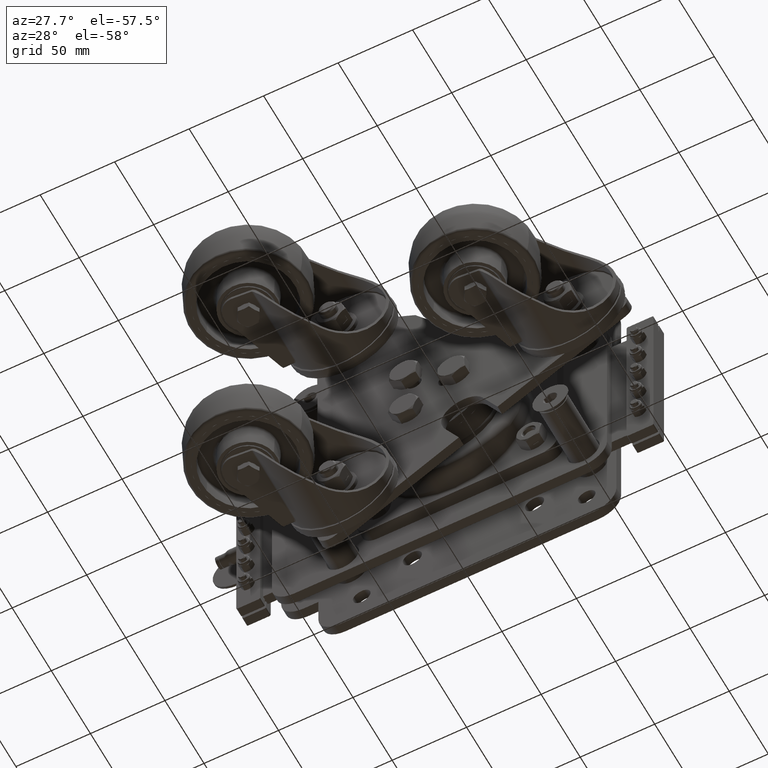
[diagram: clean part render]
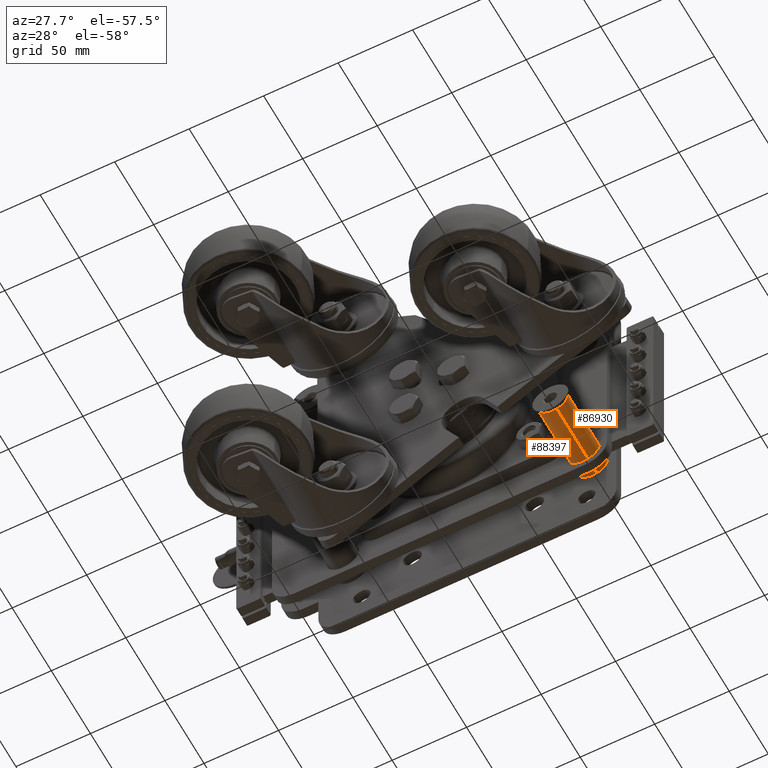
[diagram: same view with one multi-face feature highlighted, each face labeled with its STEP entity id]
A machine part, auxiliary view. The highlighted faces form ONE feature: a constant-radius fillet chain: 2 tangent blend faces with common blend radius 10 mm. The faces share edges in the B-rep.
Their STEP definitions:
[1] entity #86930 (Cylinder):
#1429 = DIRECTION ( 'NONE',  ( 0.0000000000000000000, -1.000000000000000000, 0.0000000000000000000 ) ) ;
#5336 = CARTESIAN_POINT ( 'NONE',  ( 77.89110428145059473, -38.99999999999999289, -49.41737430187008329 ) ) ;
#5554 = CARTESIAN_POINT ( 'NONE',  ( 80.74999999999997158, -38.99999999999999289, -59.00000000000000711 ) ) ;
#7248 = DIRECTION ( 'NONE',  ( 0.2858895718549387399, 0.0000000000000000000, -0.9582625698129921821 ) ) ;
#9030 = EDGE_CURVE ( 'NONE', #53094, #76576, #79877, .T. ) ;
#13613 = CARTESIAN_POINT ( 'NONE',  ( 83.60889571854936264, 12.00000000000000355, -68.58262569812991671 ) ) ;
#16368 = LINE ( 'NONE', #129026, #52244 ) ;
#18808 = CYLINDRICAL_SURFACE ( 'NONE', #73103, 9.999999999999996447 ) ;
#24683 = LINE ( 'NONE', #61466, #73086 ) ;
#37645 = ORIENTED_EDGE ( 'NONE', *, *, #9030, .T. ) ;
#38461 = CARTESIAN_POINT ( 'NONE',  ( 80.74999999999997158, -38.99999999999999289, -59.00000000000000711 ) ) ;
#39479 = ORIENTED_EDGE ( 'NONE', *, *, #58894, .F. ) ;
#45013 = EDGE_CURVE ( 'NONE', #77771, #53094, #16368, .T. ) ;
#45739 = DIRECTION ( 'NONE',  ( 0.0000000000000000000, 1.000000000000000000, 0.0000000000000000000 ) ) ;
#48458 = DIRECTION ( 'NONE',  ( -0.2858895718549387399, 0.0000000000000000000, 0.9582625698129921821 ) ) ;
#51217 = EDGE_LOOP ( 'NONE', ( #39479, #80608, #105840, #37645 ) ) ;
#52244 = VECTOR ( 'NONE', #70752, 1000.000000000000000 ) ;
#53094 = VERTEX_POINT ( 'NONE', #13613 ) ;
#58894 = EDGE_CURVE ( 'NONE', #80784, #76576, #24683, .T. ) ;
#61012 = CARTESIAN_POINT ( 'NONE',  ( 77.89110428145059473, 12.00000000000000355, -49.41737430187008329 ) ) ;
#61312 = DIRECTION ( 'NONE',  ( -0.2858895718549387399, 0.0000000000000000000, 0.9582625698129921821 ) ) ;
#61466 = CARTESIAN_POINT ( 'NONE',  ( 77.89110428145059473, -38.99999999999999289, -49.41737430187008329 ) ) ;
#70752 = DIRECTION ( 'NONE',  ( 0.0000000000000000000, 1.000000000000000000, 0.0000000000000000000 ) ) ;
#73086 = VECTOR ( 'NONE', #101734, 1000.000000000000000 ) ;
#73103 = AXIS2_PLACEMENT_3D ( 'NONE', #5554, #45739, #7248 ) ;
#76576 = VERTEX_POINT ( 'NONE', #61012 ) ;
#77771 = VERTEX_POINT ( 'NONE', #127773 ) ;
#79877 = CIRCLE ( 'NONE', #100388, 9.999999999999996447 ) ;
#80608 = ORIENTED_EDGE ( 'NONE', *, *, #118829, .F. ) ;
#80784 = VERTEX_POINT ( 'NONE', #5336 ) ;
#86930 = ADVANCED_FACE ( 'NONE', ( #123756 ), #18808, .T. ) ;
#97949 = CIRCLE ( 'NONE', #104237, 9.999999999999996447 ) ;
#100388 = AXIS2_PLACEMENT_3D ( 'NONE', #121303, #1429, #61312 ) ;
#101734 = DIRECTION ( 'NONE',  ( 0.0000000000000000000, 1.000000000000000000, 0.0000000000000000000 ) ) ;
#104237 = AXIS2_PLACEMENT_3D ( 'NONE', #38461, #108476, #48458 ) ;
#105840 = ORIENTED_EDGE ( 'NONE', *, *, #45013, .T. ) ;
#108476 = DIRECTION ( 'NONE',  ( 0.0000000000000000000, -1.000000000000000000, 0.0000000000000000000 ) ) ;
#118829 = EDGE_CURVE ( 'NONE', #77771, #80784, #97949, .T. ) ;
#121303 = CARTESIAN_POINT ( 'NONE',  ( 80.74999999999997158, 12.00000000000000355, -59.00000000000000711 ) ) ;
#123756 = FACE_OUTER_BOUND ( 'NONE', #51217, .T. ) ;
#127773 = CARTESIAN_POINT ( 'NONE',  ( 83.60889571854936264, -38.99999999999999289, -68.58262569812991671 ) ) ;
#129026 = CARTESIAN_POINT ( 'NONE',  ( 83.60889571854936264, -38.99999999999999289, -68.58262569812991671 ) ) ;
[2] entity #88397 (Cylinder):
#5336 = CARTESIAN_POINT ( 'NONE',  ( 77.89110428145059473, -38.99999999999999289, -49.41737430187008329 ) ) ;
#13613 = CARTESIAN_POINT ( 'NONE',  ( 83.60889571854936264, 12.00000000000000355, -68.58262569812991671 ) ) ;
#13903 = ORIENTED_EDGE ( 'NONE', *, *, #105943, .F. ) ;
#16368 = LINE ( 'NONE', #129026, #52244 ) ;
#24683 = LINE ( 'NONE', #61466, #73086 ) ;
#31452 = CARTESIAN_POINT ( 'NONE',  ( 80.74999999999997158, 12.00000000000000355, -59.00000000000000711 ) ) ;
#45013 = EDGE_CURVE ( 'NONE', #77771, #53094, #16368, .T. ) ;
#47545 = CYLINDRICAL_SURFACE ( 'NONE', #101842, 9.999999999999996447 ) ;
#51574 = CIRCLE ( 'NONE', #122830, 9.999999999999996447 ) ;
#52244 = VECTOR ( 'NONE', #70752, 1000.000000000000000 ) ;
#53094 = VERTEX_POINT ( 'NONE', #13613 ) ;
#54866 = DIRECTION ( 'NONE',  ( 0.2858895718549387399, 0.0000000000000000000, -0.9582625698129921821 ) ) ;
#58894 = EDGE_CURVE ( 'NONE', #80784, #76576, #24683, .T. ) ;
#61012 = CARTESIAN_POINT ( 'NONE',  ( 77.89110428145059473, 12.00000000000000355, -49.41737430187008329 ) ) ;
#61466 = CARTESIAN_POINT ( 'NONE',  ( 77.89110428145059473, -38.99999999999999289, -49.41737430187008329 ) ) ;
#65870 = DIRECTION ( 'NONE',  ( -0.2858895718549387399, 0.0000000000000000000, 0.9582625698129921821 ) ) ;
#69035 = CIRCLE ( 'NONE', #123467, 9.999999999999996447 ) ;
#69254 = ORIENTED_EDGE ( 'NONE', *, *, #80045, .T. ) ;
#70752 = DIRECTION ( 'NONE',  ( 0.0000000000000000000, 1.000000000000000000, 0.0000000000000000000 ) ) ;
#70914 = EDGE_LOOP ( 'NONE', ( #13903, #117015, #69254, #78079 ) ) ;
#72110 = DIRECTION ( 'NONE',  ( -0.2858895718549387399, 0.0000000000000000000, 0.9582625698129921821 ) ) ;
#73086 = VECTOR ( 'NONE', #101734, 1000.000000000000000 ) ;
#76576 = VERTEX_POINT ( 'NONE', #61012 ) ;
#77771 = VERTEX_POINT ( 'NONE', #127773 ) ;
#78079 = ORIENTED_EDGE ( 'NONE', *, *, #45013, .F. ) ;
#80045 = EDGE_CURVE ( 'NONE', #76576, #53094, #51574, .T. ) ;
#80784 = VERTEX_POINT ( 'NONE', #5336 ) ;
#88397 = ADVANCED_FACE ( 'NONE', ( #91407 ), #47545, .T. ) ;
#91407 = FACE_OUTER_BOUND ( 'NONE', #70914, .T. ) ;
#96131 = CARTESIAN_POINT ( 'NONE',  ( 80.74999999999997158, -38.99999999999999289, -59.00000000000000711 ) ) ;
#100590 = DIRECTION ( 'NONE',  ( 0.0000000000000000000, -1.000000000000000000, 0.0000000000000000000 ) ) ;
#101734 = DIRECTION ( 'NONE',  ( 0.0000000000000000000, 1.000000000000000000, 0.0000000000000000000 ) ) ;
#101842 = AXIS2_PLACEMENT_3D ( 'NONE', #96131, #125002, #54866 ) ;
#105943 = EDGE_CURVE ( 'NONE', #80784, #77771, #69035, .T. ) ;
#114883 = DIRECTION ( 'NONE',  ( 0.0000000000000000000, -1.000000000000000000, 0.0000000000000000000 ) ) ;
#117015 = ORIENTED_EDGE ( 'NONE', *, *, #58894, .T. ) ;
#122830 = AXIS2_PLACEMENT_3D ( 'NONE', #31452, #100590, #72110 ) ;
#123467 = AXIS2_PLACEMENT_3D ( 'NONE', #125395, #114883, #65870 ) ;
#125002 = DIRECTION ( 'NONE',  ( 0.0000000000000000000, 1.000000000000000000, 0.0000000000000000000 ) ) ;
#125395 = CARTESIAN_POINT ( 'NONE',  ( 80.74999999999997158, -38.99999999999999289, -59.00000000000000711 ) ) ;
#127773 = CARTESIAN_POINT ( 'NONE',  ( 83.60889571854936264, -38.99999999999999289, -68.58262569812991671 ) ) ;
#129026 = CARTESIAN_POINT ( 'NONE',  ( 83.60889571854936264, -38.99999999999999289, -68.58262569812991671 ) ) ;